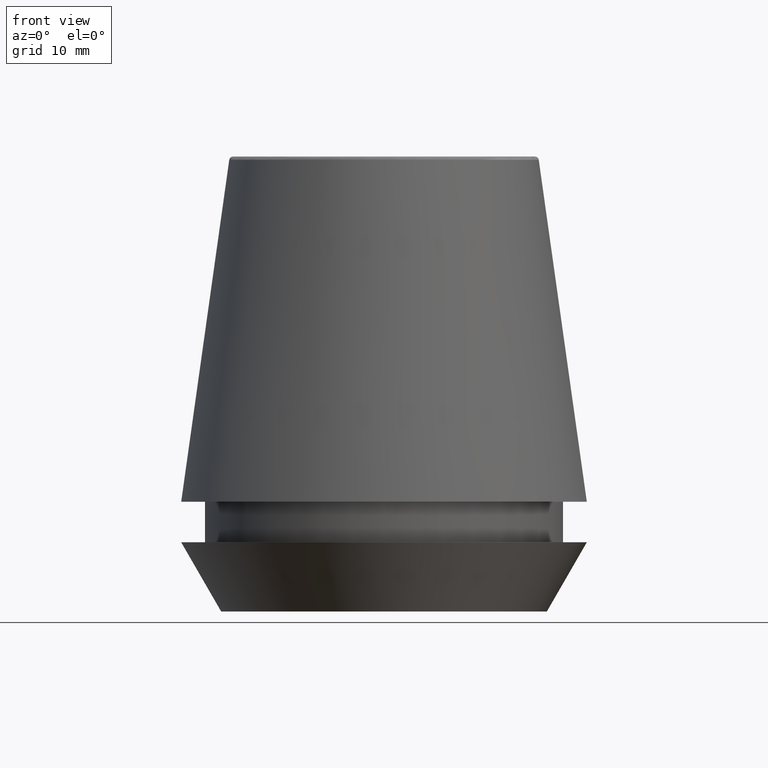
[diagram: clean part render]
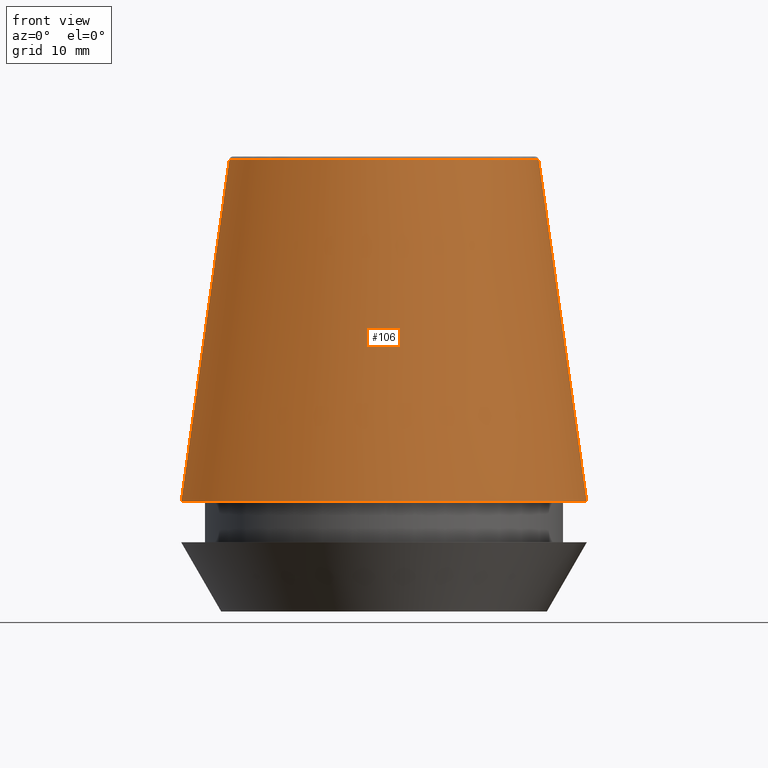
[diagram: same view with one face highlighted and labeled with its STEP entity id]
A machine part, front view. The second image highlights one B-rep face of the part: STEP entity #106.
In plain terms, the highlighted conical surface has half-angle 8 deg.
Its self-contained STEP definition (entity closure, byte-faithful):
#8 = CARTESIAN_POINT ( 'NONE',  ( 0.0000000000000000000, 0.0000000000000000000, 11.09999999999999800 ) ) ;
#15 = VERTEX_POINT ( 'NONE', #64 ) ;
#64 = CARTESIAN_POINT ( 'NONE',  ( 15.64384277279740400, 2.213191991290356800E-015, 45.65566924038402900 ) ) ;
#69 = EDGE_LOOP ( 'NONE', ( #191, #219, #209, #345 ) ) ;
#88 = EDGE_CURVE ( 'NONE', #232, #108, #359, .T. ) ;
#97 = CARTESIAN_POINT ( 'NONE',  ( -20.50032537154048700, 0.0000000000000000000, 11.09999999999999800 ) ) ;
#100 = VECTOR ( 'NONE', #334, 1000.000000000000000 ) ;
#103 = FACE_OUTER_BOUND ( 'NONE', #69, .T. ) ;
#105 = DIRECTION ( 'NONE',  ( 1.000000000000000000, 0.0000000000000000000, 0.0000000000000000000 ) ) ;
#106 = ADVANCED_FACE ( 'NONE', ( #103 ), #182, .T. ) ;
#108 = VERTEX_POINT ( 'NONE', #97 ) ;
#109 = VERTEX_POINT ( 'NONE', #309 ) ;
#120 = VECTOR ( 'NONE', #167, 1000.000000000000000 ) ;
#129 = CARTESIAN_POINT ( 'NONE',  ( -20.50032537154048700, 0.0000000000000000000, 11.09999999999999800 ) ) ;
#133 = DIRECTION ( 'NONE',  ( -0.0000000000000000000, -0.0000000000000000000, 1.000000000000000000 ) ) ;
#164 = EDGE_CURVE ( 'NONE', #15, #109, #375, .T. ) ;
#167 = DIRECTION ( 'NONE',  ( 0.1391731009600587200, 1.704378926181473400E-017, -0.9902680687415712500 ) ) ;
#174 = EDGE_CURVE ( 'NONE', #108, #109, #200, .T. ) ;
#178 = AXIS2_PLACEMENT_3D ( 'NONE', #8, #361, #363 ) ;
#182 = CONICAL_SURFACE ( 'NONE', #178, 20.50032537154048700, 0.1396263401595396200 ) ;
#191 = ORIENTED_EDGE ( 'NONE', *, *, #164, .F. ) ;
#200 = CIRCLE ( 'NONE', #304, 20.50032537154048700 ) ;
#209 = ORIENTED_EDGE ( 'NONE', *, *, #88, .T. ) ;
#212 = EDGE_CURVE ( 'NONE', #232, #15, #377, .T. ) ;
#219 = ORIENTED_EDGE ( 'NONE', *, *, #212, .F. ) ;
#232 = VERTEX_POINT ( 'NONE', #290 ) ;
#254 = AXIS2_PLACEMENT_3D ( 'NONE', #338, #133, #105 ) ;
#264 = CARTESIAN_POINT ( 'NONE',  ( 0.0000000000000000000, 0.0000000000000000000, 11.09999999999999800 ) ) ;
#290 = CARTESIAN_POINT ( 'NONE',  ( -15.64384277279740400, 0.0000000000000000000, 45.65566924038402900 ) ) ;
#304 = AXIS2_PLACEMENT_3D ( 'NONE', #264, #337, #370 ) ;
#309 = CARTESIAN_POINT ( 'NONE',  ( 20.50032537154048700, 2.510565784773633700E-015, 11.09999999999999800 ) ) ;
#334 = DIRECTION ( 'NONE',  ( -0.1391731009600587200, 0.0000000000000000000, -0.9902680687415712500 ) ) ;
#337 = DIRECTION ( 'NONE',  ( -0.0000000000000000000, -0.0000000000000000000, 1.000000000000000000 ) ) ;
#338 = CARTESIAN_POINT ( 'NONE',  ( 0.0000000000000000000, 0.0000000000000000000, 45.65566924038402900 ) ) ;
#345 = ORIENTED_EDGE ( 'NONE', *, *, #174, .T. ) ;
#359 = LINE ( 'NONE', #129, #100 ) ;
#361 = DIRECTION ( 'NONE',  ( 0.0000000000000000000, 0.0000000000000000000, -1.000000000000000000 ) ) ;
#363 = DIRECTION ( 'NONE',  ( -1.000000000000000000, 0.0000000000000000000, 0.0000000000000000000 ) ) ;
#369 = CARTESIAN_POINT ( 'NONE',  ( 20.50032537154048700, 2.510565784773633700E-015, 11.09999999999999800 ) ) ;
#370 = DIRECTION ( 'NONE',  ( 1.000000000000000000, 0.0000000000000000000, 0.0000000000000000000 ) ) ;
#375 = LINE ( 'NONE', #369, #120 ) ;
#377 = CIRCLE ( 'NONE', #254, 15.64384277279740400 ) ;